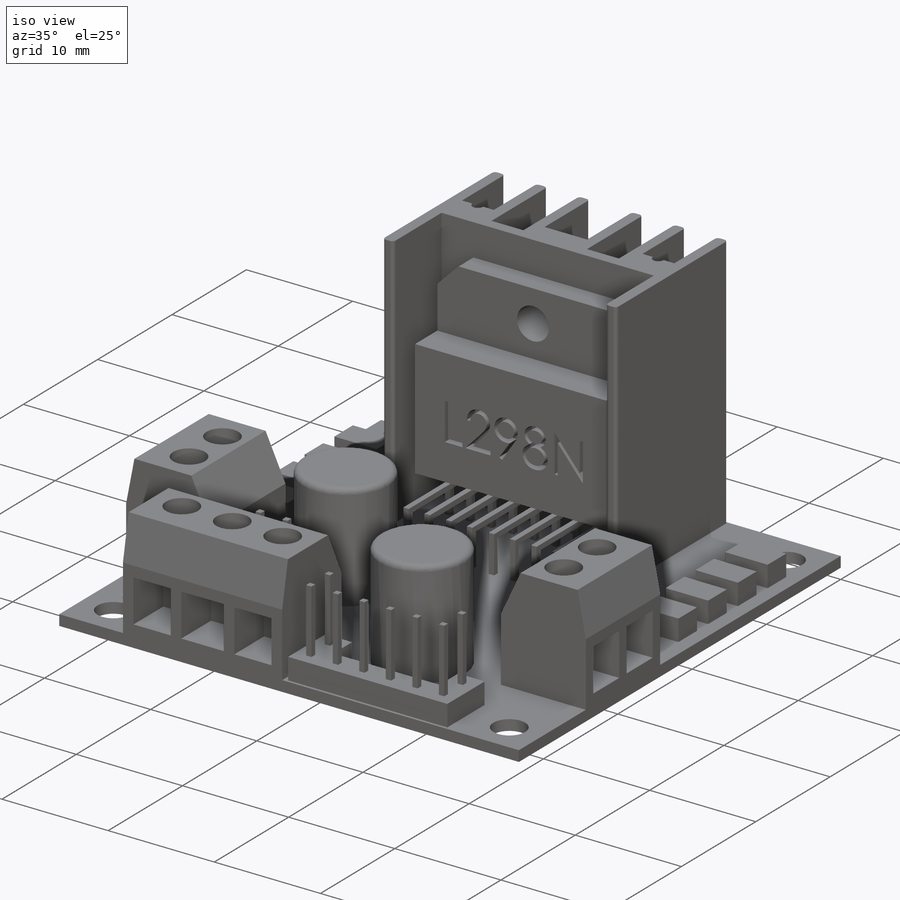
[diagram: iso view]
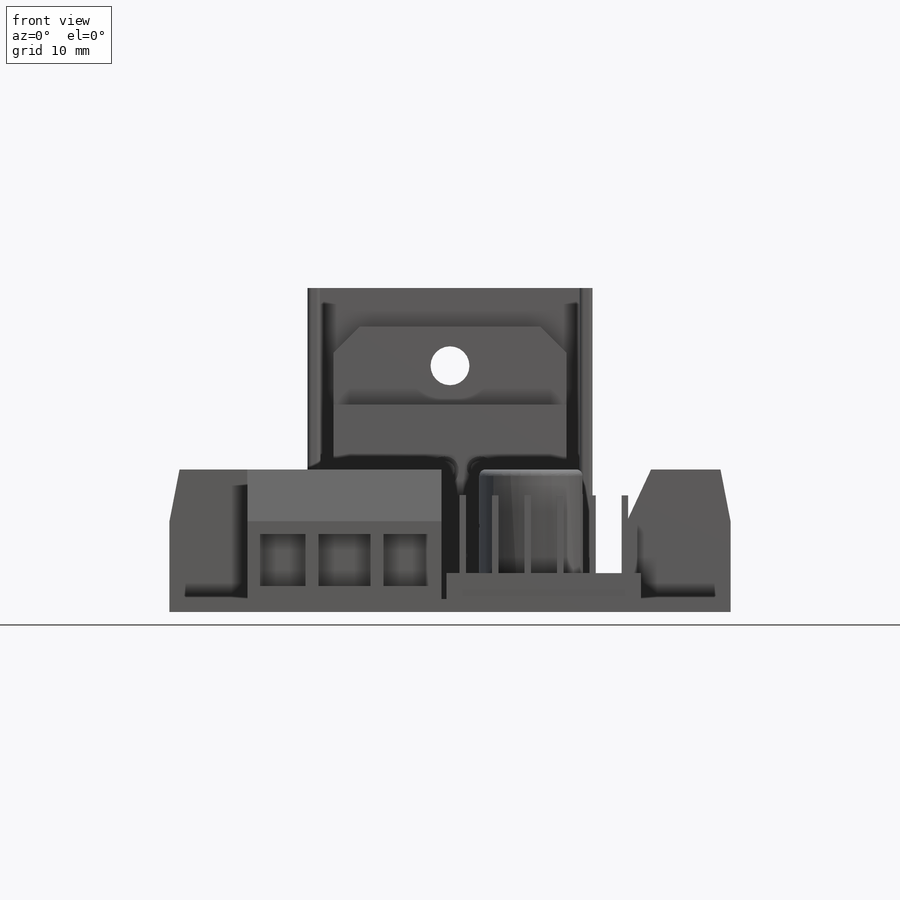
[diagram: front view]
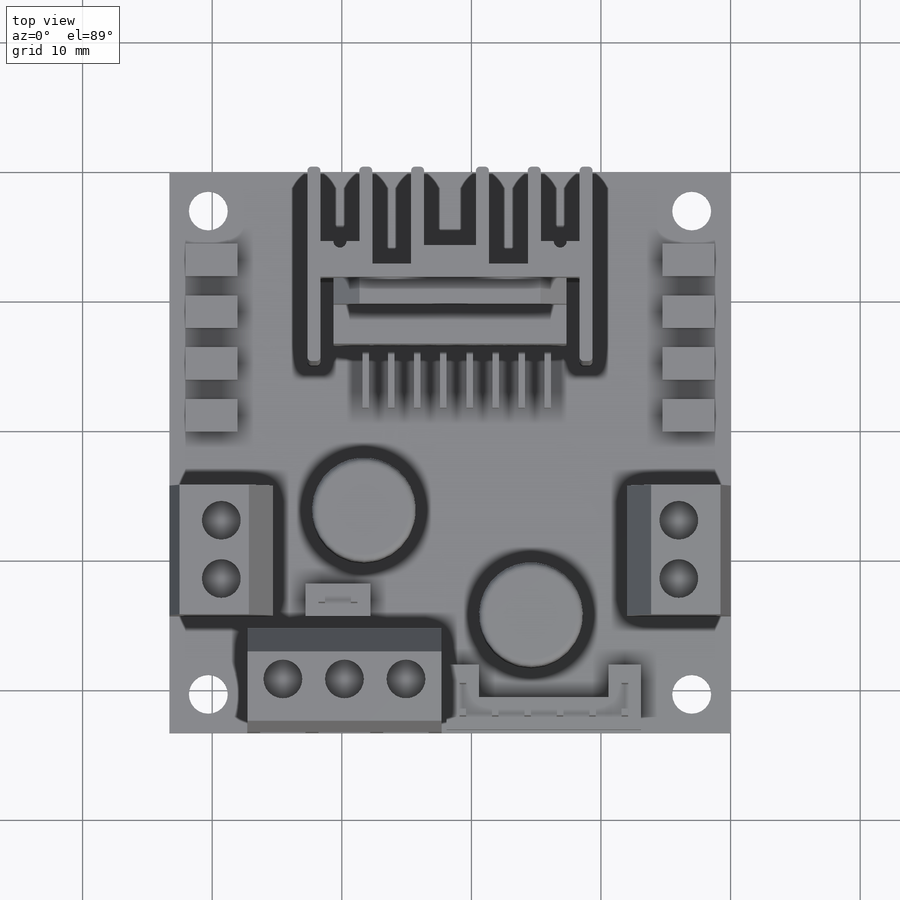
[diagram: top view]
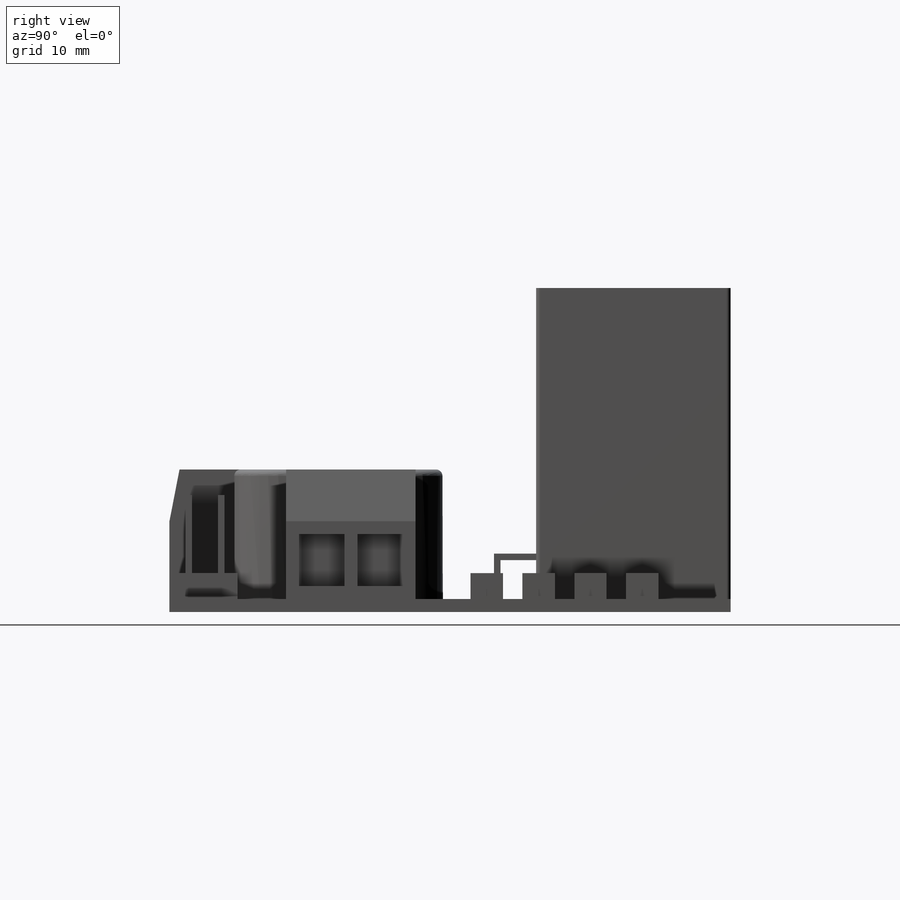
[diagram: right view]
SOLIDWORKS PART (.sldprt)
format: sldprt  version: not decoded by parser v0  size: 1,204,224 bytes
history: native  units: mm
features: sketch x22, extrude x15, cut_extrude x7, chamfer x6, plane x3, fillet x2, material x1 (+10 scaffold rows collapsed)
feature tree (66):
  scaffold x10  (default folders/planes/origin — collapsed)
  material  "Material <not specified>"
  plane  "Alzado"
  plane  "Planta"
  plane  "Vista lateral"
  sketch  "Croquis1"  dims[D2=~1.573696mm D1=3.0mm]
  extrude  "Saliente-Extruir1"  Depth=1mm
  sketch  "Croquis2"  dims[c1.D1=16.5mm c1.D2=16.5mm c1.D3=15.0mm c2.D1=4.0mm c2.D2=4.0mm c2.D4=4.0mm c2.D5=4.0mm c3.D1=11.0mm c3.D2=11.0mm c3.D3=4.0mm c3.D4=4.0mm c3.D5=4.0mm c3.D6=4.0mm c3.D7=1.0mm c3.D8=1.0mm c3.D9=1.0mm c3.D10=1.0mm c3.D11=1.0mm c3.D12=1.0mm c3.D13=1.0mm]
  extrude  "Saliente-Extruir2"  Depth=24mm
  sketch  "Croquis3"  dims[D1=9.0mm D2=10.0mm D3=8.0mm D4=8.0mm]
  extrude  "Saliente-Extruir3"  Depth=10mm
  chamfer  "Chaflán1"  Distance=4mm Angle=25deg
  chamfer  "Chaflán2"  Distance=4mm Angle=25deg
  chamfer  "Chaflán3"  Distance=4mm Angle=11deg
  chamfer  "Chaflán4"  Distance=4mm Angle=11deg
  sketch  "Croquis4"  dims[D1=8.0mm]
  extrude  "Saliente-Extruir4"  Depth=10mm
  chamfer  "Chaflán5"  Distance=4mm Angle=11deg
  chamfer  "Chaflán6"  Distance=4mm Angle=25deg
  sketch  "Croquis5"  dims[c1.D1=2.5mm c2.D1=4.0]
  extrude  "Saliente-Extruir5"  Depth=2mm
  sketch  "Croquis6"  dims[D1=7.0mm]
  extrude  "Saliente-Extruir6"  Depth=10mm
  fillet  "Redondeo1"  Radius=0.5mm
  sketch  "Croquis7"  dims[c1.D1=2.5mm c2.D1=6.0 c2.D2=2.0]
  extrude  "Saliente-Extruir7"  Depth=2mm
  sketch  "Croquis8"  dims[c1.D1=2.5mm c2.D1=3.0]
  extrude  "Saliente-Extruir8"  Depth=2mm
  sketch  "Croquis9"  dims[c1.D4=0.5mm c1.D1=1.25mm c1.D2=1.25mm c1.D3=1.25mm c2.D4=6.0 c2.D5=2.0]
  extrude  "Saliente-Extruir9"  Depth=6mm
  sketch  "Croquis10"  dims[c1.D4=0.5mm c1.D1=1.25mm c1.D2=1.25mm c1.D3=1.25mm c2.D4=2.0]
  extrude  "Saliente-Extruir10"  Depth=6mm
  sketch  "Croquis11"  dims[D1=3.0mm D2=9.0mm D3=9.0mm D4=7.0mm D5=10.0mm]
  extrude  "Saliente-Extruir11"  Depth=5mm
  sketch  "Croquis12"  dims[D1=6.0mm]
  cut_extrude  "Cortar-Extruir1"  Depth=3mm
  sketch  "Croquis13"  dims[c1.D1=0.5mm c1.D2=0.5mm c2.D1=8.0]
  extrude  "Saliente-Extruir12"  Depth=1mm
  sketch  "Croquis14"  dims[c1.D1=0.5mm c2.D1=4.0 c2.D2=4.0]
  extrude  "Saliente-Extruir13"  Depth=7mm
  sketch  "Croquis15"  dims[c1.D1=0.5mm c2.D1=4.0]
  extrude  "Saliente-Extruir14"  Depth=4mm
  sketch  "Croquis16"
  extrude  "Saliente-Extruir15"  Depth=4mm
  sketch  "Croquis17"
  cut_extrude  "Cortar-Extruir2"  Depth=1mm
  sketch  "Croquis18"  dims[D2=~0.760611mm D1=3.0mm]
  cut_extrude  "Cortar-Extruir3"  [1 undecoded]
  sketch  "Croquis19"  dims[D1=1.0mm D2=1.0mm D3=1.0mm D4=2.0mm D5=0.5mm D6=0.5mm]
  cut_extrude  "Cortar-Extruir4"  Depth=4mm
  sketch  "Croquis20"  dims[D1=1.0mm D2=1.0mm D3=1.0mm D4=2.0mm D5=3.5mm D6=3.5mm D7=1.0mm D8=1.0mm]
  cut_extrude  "Cortar-Extruir5"  Depth=4mm
  sketch  "Croquis21"  dims[c1.D7=8.0mm c1.D1=1.0mm c1.D2=1.0mm c1.D3=1.0mm c1.D4=1.0mm c1.D5=3.5mm c1.D6=3.5mm c2.D7=1.0mm]
  cut_extrude  "Cortar-Extruir6"  Depth=4mm
  sketch  "Croquis22"  dims[D1=~1.45033mm]
  cut_extrude  "Cortar-Extruir7"  Depth=2mm
  fillet  "Redondeo2"  Radius=0.3mm
decode coverage: 49 of 52 modeling features carry decoded parameters
note: ~ marks probable driven/reference dimensions
note: 1 parameter value undecoded
note: suppression state not decoded; provenance and decode notes live in map.json
